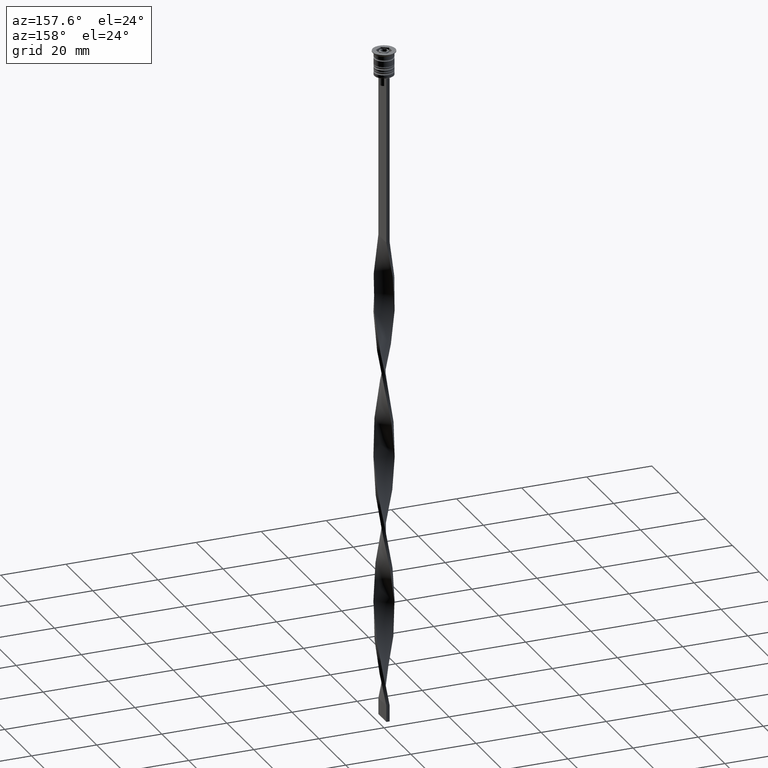
[diagram: clean part render]
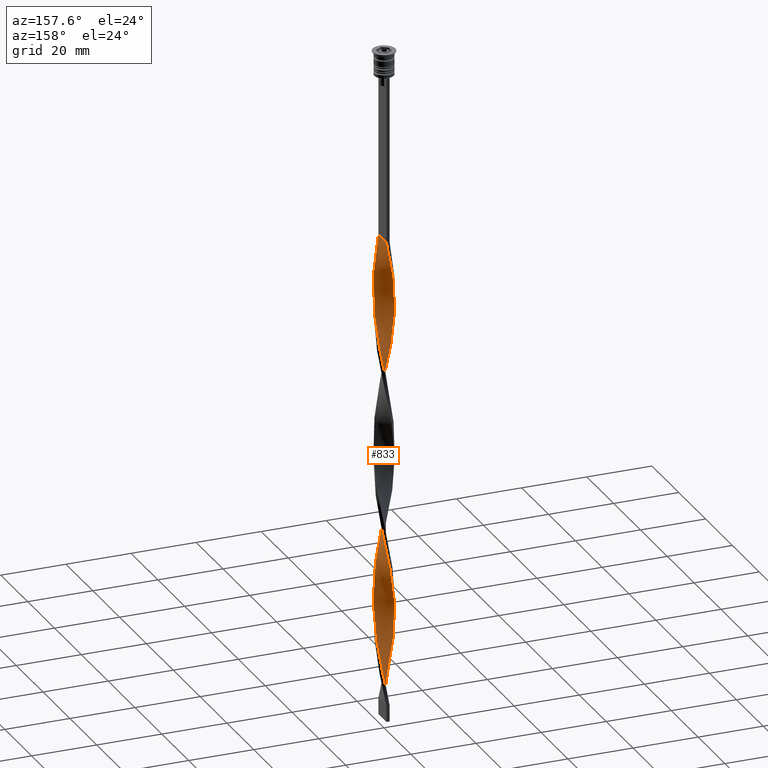
[diagram: same view with one face highlighted and labeled with its STEP entity id]
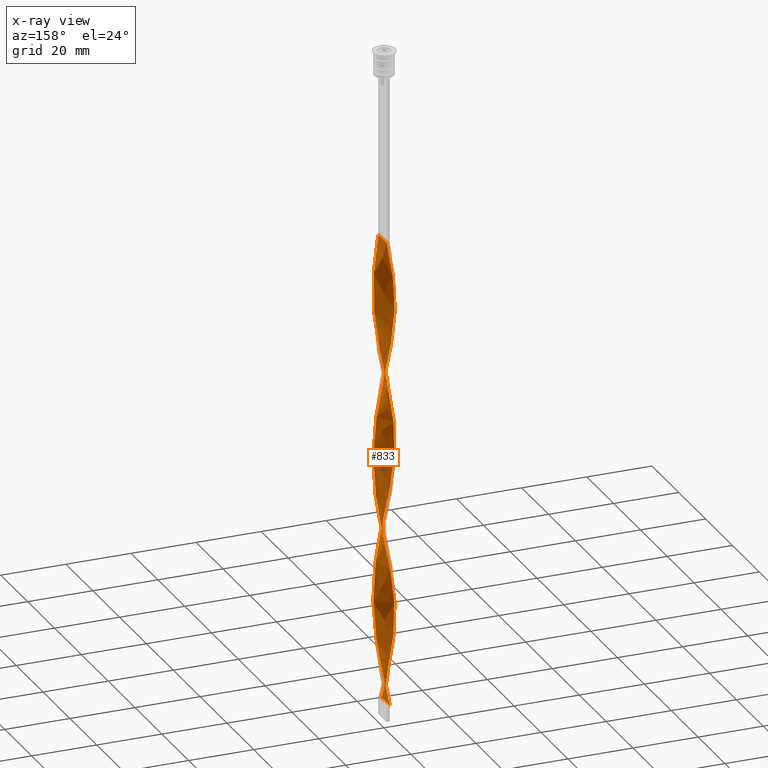
[diagram: x-ray of the same camera — body ghosted, the highlighted face saturated]
A machine part, auxiliary view. The second image highlights one B-rep face of the part: STEP entity #833.
The next image is the same camera in x-ray: the body ghosted, the highlighted face saturated — about 0% of this face is hidden behind the body in this view.
In plain terms, the highlighted face is a freeform B-spline surface patch.
Its self-contained STEP definition (entity closure, byte-faithful):
#2 = CARTESIAN_POINT ( 'NONE',  ( -1.651582472329342188, 2.553874573485256150, -69.79411764705881183 ) ) ;
#10 = CARTESIAN_POINT ( 'NONE',  ( -2.990795728622512417, -0.6201342673170633368, -88.14705882352940591 ) ) ;
#18 = CARTESIAN_POINT ( 'NONE',  ( 2.990795728622511973, -0.6201342673170637809, -172.8529411764705799 ) ) ;
#22 = CARTESIAN_POINT ( 'NONE',  ( -0.3415330684894309909, 3.035256292798965916, -62.73529411764705799 ) ) ;
#27 = CARTESIAN_POINT ( 'NONE',  ( -0.05976200360776023901, 3.040794057959990582, -157.3235294117646959 ) ) ;
#39 = CARTESIAN_POINT ( 'NONE',  ( -2.628006467404950364, 1.556601299988307430, -76.85294117647060830 ) ) ;
#45 = CARTESIAN_POINT ( 'NONE',  ( 2.825922375284400712, 1.159132575987103841, -138.9705882352941160 ) ) ;
#59 = CARTESIAN_POINT ( 'NONE',  ( -2.825922375284400712, -1.159132575987104508, -90.97058823529413019 ) ) ;
#64 = CARTESIAN_POINT ( 'NONE',  ( 2.869284401559883069, -1.047202283617008511, -127.6764705882352757 ) ) ;
#80 = CARTESIAN_POINT ( 'NONE',  ( -1.154187920767260289, 2.813867488627520785, -66.97058823529411598 ) ) ;
#86 = CARTESIAN_POINT ( 'NONE',  ( -2.004405056496874504, -2.287435325750164505, -98.02941176470588402 ) ) ;
#91 = CARTESIAN_POINT ( 'NONE',  ( -2.908359051953456564, 0.8896334216520830340, -123.4411764705882177 ) ) ;
#97 = CARTESIAN_POINT ( 'NONE',  ( 2.004405056496874504, -2.287435325750164505, -66.97058823529411598 ) ) ;
#107 = CARTESIAN_POINT ( 'NONE',  ( -0.2220090612739111235, 3.046331823121015692, -105.0882352941176521 ) ) ;
#116 = CARTESIAN_POINT ( 'NONE',  ( -2.908359051953456120, -0.8896334216520835891, -185.5588235294117396 ) ) ;
#121 = CARTESIAN_POINT ( 'NONE',  ( -2.004405056496874504, -2.287435325750164505, -194.0294117647058556 ) ) ;
#125 = CARTESIAN_POINT ( 'NONE',  ( 3.033336708616754862, 0.2210620097576110610, -81.08823529411763786 ) ) ;
#134 = CARTESIAN_POINT ( 'NONE',  ( -3.033336708616754418, 0.2210620097576115606, -179.9117647058823195 ) ) ;
#144 = CARTESIAN_POINT ( 'NONE',  ( -0.3415330684894319901, -3.035256292798965916, -150.2647058823528994 ) ) ;
#153 = CARTESIAN_POINT ( 'NONE',  ( -3.012852296747023484, 0.5021420494578373583, -178.4999999999999716 ) ) ;
#158 = CARTESIAN_POINT ( 'NONE',  ( -2.695369000030346740, -1.408895295497649247, -188.3823529411764355 ) ) ;
#162 = CARTESIAN_POINT ( 'NONE',  ( 2.695369000030346296, -1.408895295497649691, -72.61764705882352189 ) ) ;
#172 = CARTESIAN_POINT ( 'NONE',  ( -2.825922375284400712, -1.159132575987104508, -186.9705882352941444 ) ) ;
#191 = CARTESIAN_POINT ( 'NONE',  ( 2.941068349153452832, 0.7746721665374228794, -83.91176470588234793 ) ) ;
#209 = CARTESIAN_POINT ( 'NONE',  ( -2.092734363651091112, -2.206912522777888519, -140.3823529411764639 ) ) ;
#228 = CARTESIAN_POINT ( 'NONE',  ( 2.297234924948886814, 2.012992126025985762, -90.97058823529413019 ) ) ;
#237 = CARTESIAN_POINT ( 'NONE',  ( 2.869284401559882625, 1.047202283617009400, -181.3235294117646959 ) ) ;
#238 = CARTESIAN_POINT ( 'NONE',  ( 0.2220090612739105962, 3.046331823121015248, -59.91176470588236214 ) ) ;
#245 = CARTESIAN_POINT ( 'NONE',  ( 2.908359051953456564, -0.8896334216520838112, -75.44117647058823195 ) ) ;
#256 = CARTESIAN_POINT ( 'NONE',  ( 0.6174888838592811346, 2.978037521306644120, -196.8529411764705515 ) ) ;
#266 = CARTESIAN_POINT ( 'NONE',  ( 2.628006467404950364, 1.556601299988306986, -88.14705882352940591 ) ) ;
#274 = CARTESIAN_POINT ( 'NONE',  ( -2.092734363651090224, 2.206912522777888963, -72.61764705882352189 ) ) ;
#284 = DIRECTION ( 'NONE',  ( 0.000000000000000000, 1.000000000000000000, 0.000000000000000000 ) ) ;
#287 = CARTESIAN_POINT ( 'NONE',  ( 1.888233802353294966, -2.400832919529793497, -119.2058823529411455 ) ) ;
#293 = CARTESIAN_POINT ( 'NONE',  ( -1.888233802353294966, 2.400832919529793497, -71.20588235294118817 ) ) ;
#301 = CARTESIAN_POINT ( 'NONE',  ( 2.564815624776293213, -1.658658015008195319, -167.2058823529411882 ) ) ;
#304 = CARTESIAN_POINT ( 'NONE',  ( -0.6174888838592811346, 2.978037521306644120, -64.14705882352940591 ) ) ;
#310 = CARTESIAN_POINT ( 'NONE',  ( -2.390591389550001722, -1.880178929838698387, -95.20588235294117396 ) ) ;
#319 = CARTESIAN_POINT ( 'NONE',  ( 2.390591389550001278, -1.880178929838698831, -165.7941176470588118 ) ) ;
#328 = CARTESIAN_POINT ( 'NONE',  ( 0.4999999999999998890, 3.000000000000000000, -154.4999999999999716 ) ) ;
#338 = CARTESIAN_POINT ( 'NONE',  ( -2.908359051953456120, -0.8896334216520835891, -89.55882352941175384 ) ) ;
#344 = CARTESIAN_POINT ( 'NONE',  ( 2.628006467404950364, -1.556601299988307430, -124.8529411764705799 ) ) ;
#359 = CARTESIAN_POINT ( 'NONE',  ( 0.4999999999999998890, 3.000000000000000000, -58.50000000000000000 ) ) ;
#363 = CARTESIAN_POINT ( 'NONE',  ( -2.297234924948886370, 2.012992126025985318, -170.0294117647058840 ) ) ;
#367 = CARTESIAN_POINT ( 'NONE',  ( -1.549961113263637058, 2.616795855119490533, -112.1470588235294059 ) ) ;
#377 = CARTESIAN_POINT ( 'NONE',  ( 1.042735103291661858, -2.857044540143419908, -61.32352941176470296 ) ) ;
#382 = CARTESIAN_POINT ( 'NONE',  ( 1.307479267857235339, 2.760420903407855064, -150.2647058823528994 ) ) ;
#386 = CARTESIAN_POINT ( 'NONE',  ( 1.154187920767260289, 2.813867488627520785, -98.02941176470588402 ) ) ;
#393 = CARTESIAN_POINT ( 'NONE',  ( 2.004405056496875837, 2.287435325750163617, -146.0294117647058556 ) ) ;
#402 = CARTESIAN_POINT ( 'NONE',  ( -2.748645434482416050, -1.301901791802657860, -134.7352941176470722 ) ) ;
#410 = CARTESIAN_POINT ( 'NONE',  ( 1.549961113263636836, 2.616795855119490533, -148.8529411764705799 ) ) ;
#418 = CARTESIAN_POINT ( 'NONE',  ( -0.8934446992291305012, -2.920818749814322324, -147.4411764705882320 ) ) ;
#425 = EDGE_CURVE ( 'NONE', #2009, #3440, #3323, .T. ) ;
#430 = CARTESIAN_POINT ( 'NONE',  ( 3.012852296747023484, -0.5021420494578376914, -130.5000000000000000 ) ) ;
#439 = CARTESIAN_POINT ( 'NONE',  ( 2.825922375284400712, -1.159132575987103841, -74.02941176470586981 ) ) ;
#446 = CARTESIAN_POINT ( 'NONE',  ( -1.042735103291662080, -2.857044540143419908, -199.6764705882352757 ) ) ;
#453 = CARTESIAN_POINT ( 'NONE',  ( 3.033336708616754862, 0.2210620097576110610, -177.0882352941176237 ) ) ;
#464 = CARTESIAN_POINT ( 'NONE',  ( -2.908359051953456564, 0.8896334216520830340, -123.4411764705882177 ) ) ;
#477 = ORIENTED_EDGE ( 'NONE', *, *, #425, .F. ) ;
#482 = CARTESIAN_POINT ( 'NONE',  ( -2.941068349153452832, -0.7746721665374217691, -131.9117647058823479 ) ) ;
#483 = CARTESIAN_POINT ( 'NONE',  ( 0.4999999999999998890, -3.000000000000000000, -58.50000000000000000 ) ) ;
#491 = CARTESIAN_POINT ( 'NONE',  ( 2.748645434482416050, 1.301901791802658304, -182.7352941176470438 ) ) ;
#492 = CARTESIAN_POINT ( 'NONE',  ( -2.908359051953456120, -0.8896334216520835891, -89.55882352941175384 ) ) ;
#499 = CARTESIAN_POINT ( 'NONE',  ( -2.390591389550001278, 1.880178929838698831, -117.7941176470588118 ) ) ;
#507 = CARTESIAN_POINT ( 'NONE',  ( 2.941068349153452832, 0.7746721665374228794, -179.9117647058823195 ) ) ;
#519 = CARTESIAN_POINT ( 'NONE',  ( 1.042735103291661858, -2.857044540143419908, -157.3235294117646959 ) ) ;
#524 = CARTESIAN_POINT ( 'NONE',  ( -0.4999999999999995559, 3.000000000000000000, -202.4999999999999716 ) ) ;
#530 = CARTESIAN_POINT ( 'NONE',  ( -1.154187920767260289, 2.813867488627520785, -66.97058823529411598 ) ) ;
#539 = CARTESIAN_POINT ( 'NONE',  ( -2.004405056496874504, 2.287435325750164061, -114.9705882352941018 ) ) ;
#569 = CARTESIAN_POINT ( 'NONE',  ( -3.033336708616754418, 0.2210620097576115606, -83.91176470588234793 ) ) ;
#582 = CARTESIAN_POINT ( 'NONE',  ( -3.033336708616754418, 0.2210620097576115606, -83.91176470588234793 ) ) ;
#589 = CARTESIAN_POINT ( 'NONE',  ( -2.990795728622512417, -0.6201342673170633368, -184.1470588235293917 ) ) ;
#601 = CARTESIAN_POINT ( 'NONE',  ( 0.8934446992291308343, -2.920818749814322324, -113.5588235294117538 ) ) ;
#608 = CARTESIAN_POINT ( 'NONE',  ( 3.012852296747023484, -0.5021420494578376914, -130.5000000000000000 ) ) ;
#628 = CARTESIAN_POINT ( 'NONE',  ( 3.053821120486486240, 0.06001802994261524332, -133.3235294117646959 ) ) ;
#638 = CARTESIAN_POINT ( 'NONE',  ( 1.651582472329342632, 2.553874573485255706, -191.2058823529411598 ) ) ;
#640 = CARTESIAN_POINT ( 'NONE',  ( -2.748645434482416050, 1.301901791802657860, -78.26470588235292780 ) ) ;
#645 = CARTESIAN_POINT ( 'NONE',  ( 1.154187920767260511, -2.813867488627520341, -114.9705882352941018 ) ) ;
#650 = CARTESIAN_POINT ( 'NONE',  ( 0.4999999999999998890, -3.000000000000000000, -58.50000000000000000 ) ) ;
#658 = CARTESIAN_POINT ( 'NONE',  ( -0.7779909387260889320, -2.953668176878986973, -201.0882352941176237 ) ) ;
#663 = CARTESIAN_POINT ( 'NONE',  ( 2.564815624776292768, 1.658658015008195985, -141.7941176470587834 ) ) ;
#668 = CARTESIAN_POINT ( 'NONE',  ( 1.888233802353294966, 2.400832919529793497, -93.79411764705882604 ) ) ;
#677 = CARTESIAN_POINT ( 'NONE',  ( -3.022308424554498441, -0.3400761486298393144, -182.7352941176470438 ) ) ;
#685 = CARTESIAN_POINT ( 'NONE',  ( -1.792442958670038777, 2.473170806831127333, -113.5588235294117396 ) ) ;
#691 = CARTESIAN_POINT ( 'NONE',  ( -2.941068349153452388, 0.7746721665374231014, -177.0882352941176237 ) ) ;
#702 = CARTESIAN_POINT ( 'NONE',  ( -2.092734363651091112, -2.206912522777888519, -140.3823529411764639 ) ) ;
#710 = CARTESIAN_POINT ( 'NONE',  ( 2.390591389550001278, -1.880178929838698831, -69.79411764705881183 ) ) ;
#719 = CARTESIAN_POINT ( 'NONE',  ( -2.941068349153452832, -0.7746721665374217691, -131.9117647058823479 ) ) ;
#730 = CARTESIAN_POINT ( 'NONE',  ( 2.825922375284400712, -1.159132575987104063, -74.02941176470586981 ) ) ;
#734 = ORIENTED_EDGE ( 'NONE', *, *, #2317, .F. ) ;
#741 = CARTESIAN_POINT ( 'NONE',  ( 0.05976200360776034309, 3.040794057959990582, -103.6764705882352899 ) ) ;
#750 = CARTESIAN_POINT ( 'NONE',  ( -2.695369000030346296, 1.408895295497650135, -120.6176470588235219 ) ) ;
#758 = CARTESIAN_POINT ( 'NONE',  ( 2.216367154323709787, -2.101699844669203010, -164.3823529411764923 ) ) ;
#770 = CARTESIAN_POINT ( 'NONE',  ( -1.042735103291661192, 2.857044540143419908, -109.3235294117646959 ) ) ;
#771 = LINE ( 'NONE', #483, #1755 ) ;
#779 = CARTESIAN_POINT ( 'NONE',  ( -0.4999999999999995559, 3.000000000000000000, -202.4999999999999716 ) ) ;
#780 = CARTESIAN_POINT ( 'NONE',  ( -2.825922375284400712, -1.159132575987104508, -90.97058823529411598 ) ) ;
#790 = CARTESIAN_POINT ( 'NONE',  ( 0.2220090612739107072, -3.046331823121015692, -153.0882352941176237 ) ) ;
#808 = CARTESIAN_POINT ( 'NONE',  ( 2.748645434482416050, 1.301901791802658304, -86.73529411764704378 ) ) ;
#829 = CARTESIAN_POINT ( 'NONE',  ( -1.154187920767261843, -2.813867488627519897, -146.0294117647058556 ) ) ;
#833 = ADVANCED_FACE ( 'NONE', ( #1442 ), #870, .T. ) ;
#859 = CARTESIAN_POINT ( 'NONE',  ( -2.941068349153452388, 0.7746721665374231014, -81.08823529411763786 ) ) ;
#869 = CARTESIAN_POINT ( 'NONE',  ( 3.012852296747023484, 0.5021420494578369143, -178.4999999999999716 ) ) ;
#870 =( BOUNDED_SURFACE ( )  B_SPLINE_SURFACE ( 1, 2, ( 
 ( #359, #3174, #3496, #22, #304, #2629, #80, #2381, #2, #2929, #3516, #1175, #2022, #39, #640, #2323, #2079, #2345, #582, #1195, #2872, #2307, #338, #59, #910, #1757, #1212, #2059, #1739, #891, #1500, #2040, #2668, #2949, #1234, #930, #3457, #3194, #2649, #601, #947, #1519, #3533, #287, #2593, #2363, #1797, #2097, #3252, #1721, #1157, #430, #2998, #1829, #1605, #1040, #3620, #3285, #1000, #3034, #2116, #2437, #393, #2981, #410, #2757, #1324, #2686, #1865, #2453, #2704, #3550, #1567, #3320, #1550, #1019, #1287, #967, #1846, #1813, #1250, #3016, #2739, #2719, #691, #153, #134, #3269, #677, #1588, #116, #172, #1885, #2472, #3603, #2400, #1269, #3585, #2418, #2191, #446, #658, #2966 ),
 ( #3569, #3304, #377, #985, #1535, #2136, #97, #2151, #710, #1304, #2171, #730, #245, #2851, #1077, #3675, #3640, #3359, #191, #2224, #808, #266, #1944, #228, #1660, #3714, #1982, #1343, #2491, #1135, #1116, #3074, #3395, #1645, #2550, #3131, #770, #1059, #1418, #3376, #539, #3094, #499, #1398, #750, #2810, #464, #1679, #2206, #1380, #1925, #2794, #482, #2262, #1096, #3342, #2569, #2509, #209, #2245, #1361, #2531, #829, #1961, #1904, #3052, #3657, #790, #3697, #3110, #519, #2830, #3413, #1697, #1624, #2775, #319, #301, #1188, #3153, #1735, #18, #1753, #2077, #2887, #869, #1172, #3231, #1793, #2037, #2591, #2340, #2283, #1153, #638, #2304, #2946, #2665, #3734, #2907, #1476, #1717, #2926 ) ),
 .UNSPECIFIED., .F., .F., .F. ) 
 B_SPLINE_SURFACE_WITH_KNOTS ( ( 2, 2 ),
 ( 3, 2, 2, 2, 2, 2, 2, 2, 2, 2, 2, 2, 2, 2, 2, 2, 2, 2, 2, 2, 2, 2, 2, 2, 2, 2, 2, 2, 2, 2, 2, 2, 2, 2, 2, 2, 2, 2, 2, 2, 2, 2, 2, 2, 2, 2, 2, 2, 2, 2, 2, 3 ),
 ( 0.000000000000000000, 1.000000000000000000 ),
 ( 0.000000000000000000, 0.01470588235294117627, 0.02941176470588235253, 0.04411764705882353227, 0.05882352941176470507, 0.07352941176470588480, 0.08823529411764706454, 0.1029411764705882304, 0.1176470588235294101, 0.1323529411764705899, 0.1470588235294117696, 0.1617647058823529493, 0.1764705882352941291, 0.1911764705882352811, 0.2058823529411764608, 0.2205882352941176405, 0.2352941176470588203, 0.2500000000000000000, 0.2647058823529411797, 0.2794117647058823595, 0.2941176470588235392, 0.3088235294117647189, 0.3235294117647058987, 0.3382352941176470784, 0.3529411764705882582, 0.3676470588235294379, 0.3823529411764705621, 0.3970588235294117418, 0.4117647058823529216, 0.4264705882352941013, 0.4411764705882352811, 0.4558823529411764608, 0.4705882352941176405, 0.4852941176470588203, 0.5000000000000000000, 0.5147058823529411242, 0.5294117647058823595, 0.5441176470588234837, 0.5588235294117647189, 0.5735294117647058432, 0.5882352941176470784, 0.6029411764705882026, 0.6176470588235294379, 0.6323529411764705621, 0.6470588235294117974, 0.6617647058823529216, 0.6764705882352941568, 0.6911764705882352811, 0.7058823529411765163, 0.7205882352941176405, 0.7352941176470588758, 0.7500000000000000000 ),
 .UNSPECIFIED. ) 
 GEOMETRIC_REPRESENTATION_ITEM ( )  RATIONAL_B_SPLINE_SURFACE ( (
 ( 1.000000000000000000, 0.9957341762950344677, 1.000000000000000000, 0.9957341762950344677, 1.000000000000000000, 0.9957341762950344677, 1.000000000000000000, 0.9957341762950344677, 1.000000000000000000, 0.9957341762950344677, 1.000000000000000000, 0.9957341762950344677, 1.000000000000000000, 0.9957341762950344677, 1.000000000000000000, 0.9957341762950344677, 1.000000000000000000, 0.9957341762950344677, 1.000000000000000000, 0.9957341762950344677, 1.000000000000000000, 0.9957341762950344677, 1.000000000000000000, 0.9957341762950344677, 1.000000000000000000, 0.9957341762950344677, 1.000000000000000000, 0.9957341762950344677, 1.000000000000000000, 0.9957341762950344677, 1.000000000000000000, 0.9957341762950344677, 1.000000000000000000, 0.9957341762950344677, 1.000000000000000000, 0.9957341762950344677, 1.000000000000000000, 0.9957341762950344677, 1.000000000000000000, 0.9957341762950344677, 1.000000000000000000, 0.9957341762950344677, 1.000000000000000000, 0.9957341762950344677, 1.000000000000000000, 0.9957341762950344677, 1.000000000000000000, 0.9957341762950344677, 1.000000000000000000, 0.9957341762950344677, 1.000000000000000000, 0.9957341762950344677, 1.000000000000000000, 0.9957341762950344677, 1.000000000000000000, 0.9957341762950344677, 1.000000000000000000, 0.9957341762950344677, 1.000000000000000000, 0.9957341762950344677, 1.000000000000000000, 0.9957341762950344677, 1.000000000000000000, 0.9957341762950344677, 1.000000000000000000, 0.9957341762950344677, 1.000000000000000000, 0.9957341762950344677, 1.000000000000000000, 0.9957341762950344677, 1.000000000000000000, 0.9957341762950344677, 1.000000000000000000, 0.9957341762950344677, 1.000000000000000000, 0.9957341762950344677, 1.000000000000000000, 0.9957341762950344677, 1.000000000000000000, 0.9957341762950344677, 1.000000000000000000, 0.9957341762950344677, 1.000000000000000000, 0.9957341762950344677, 1.000000000000000000, 0.9957341762950344677, 1.000000000000000000, 0.9957341762950344677, 1.000000000000000000, 0.9957341762950344677, 1.000000000000000000, 0.9957341762950344677, 1.000000000000000000, 0.9957341762950344677, 1.000000000000000000, 0.9957341762950344677, 1.000000000000000000, 0.9957341762950344677, 1.000000000000000000, 0.9957341762950344677, 1.000000000000000000, 0.9957341762950344677, 1.000000000000000000),
 ( 1.000000000000000000, 0.9957341762950344677, 1.000000000000000000, 0.9957341762950344677, 1.000000000000000000, 0.9957341762950344677, 1.000000000000000000, 0.9957341762950344677, 1.000000000000000000, 0.9957341762950344677, 1.000000000000000000, 0.9957341762950344677, 1.000000000000000000, 0.9957341762950344677, 1.000000000000000000, 0.9957341762950344677, 1.000000000000000000, 0.9957341762950344677, 1.000000000000000000, 0.9957341762950344677, 1.000000000000000000, 0.9957341762950344677, 1.000000000000000000, 0.9957341762950344677, 1.000000000000000000, 0.9957341762950344677, 1.000000000000000000, 0.9957341762950344677, 1.000000000000000000, 0.9957341762950344677, 1.000000000000000000, 0.9957341762950344677, 1.000000000000000000, 0.9957341762950344677, 1.000000000000000000, 0.9957341762950344677, 1.000000000000000000, 0.9957341762950344677, 1.000000000000000000, 0.9957341762950344677, 1.000000000000000000, 0.9957341762950344677, 1.000000000000000000, 0.9957341762950344677, 1.000000000000000000, 0.9957341762950344677, 1.000000000000000000, 0.9957341762950344677, 1.000000000000000000, 0.9957341762950344677, 1.000000000000000000, 0.9957341762950344677, 1.000000000000000000, 0.9957341762950344677, 1.000000000000000000, 0.9957341762950344677, 1.000000000000000000, 0.9957341762950344677, 1.000000000000000000, 0.9957341762950344677, 1.000000000000000000, 0.9957341762950344677, 1.000000000000000000, 0.9957341762950344677, 1.000000000000000000, 0.9957341762950344677, 1.000000000000000000, 0.9957341762950344677, 1.000000000000000000, 0.9957341762950344677, 1.000000000000000000, 0.9957341762950344677, 1.000000000000000000, 0.9957341762950344677, 1.000000000000000000, 0.9957341762950344677, 1.000000000000000000, 0.9957341762950344677, 1.000000000000000000, 0.9957341762950344677, 1.000000000000000000, 0.9957341762950344677, 1.000000000000000000, 0.9957341762950344677, 1.000000000000000000, 0.9957341762950344677, 1.000000000000000000, 0.9957341762950344677, 1.000000000000000000, 0.9957341762950344677, 1.000000000000000000, 0.9957341762950344677, 1.000000000000000000, 0.9957341762950344677, 1.000000000000000000, 0.9957341762950344677, 1.000000000000000000, 0.9957341762950344677, 1.000000000000000000, 0.9957341762950344677, 1.000000000000000000, 0.9957341762950344677, 1.000000000000000000) ) ) 
 REPRESENTATION_ITEM ( '' )  SURFACE ( )  );
#878 = CARTESIAN_POINT ( 'NONE',  ( -3.022308424554498441, -0.3400761486298393144, -182.7352941176470438 ) ) ;
#891 = CARTESIAN_POINT ( 'NONE',  ( -1.792442958670039221, -2.473170806831126445, -99.44117647058823195 ) ) ;
#898 = CARTESIAN_POINT ( 'NONE',  ( 2.908359051953456120, 0.8896334216520844773, -137.5588235294117680 ) ) ;
#910 = CARTESIAN_POINT ( 'NONE',  ( -2.695369000030346740, -1.408895295497649247, -92.38235294117646390 ) ) ;
#918 = CARTESIAN_POINT ( 'NONE',  ( 2.390591389550000834, 1.880178929838699053, -143.2058823529411882 ) ) ;
#930 = CARTESIAN_POINT ( 'NONE',  ( -0.2220090612739103741, -3.046331823121014803, -107.9117647058823621 ) ) ;
#936 = CARTESIAN_POINT ( 'NONE',  ( 1.651582472329342188, -2.553874573485256150, -117.7941176470588118 ) ) ;
#947 = CARTESIAN_POINT ( 'NONE',  ( 1.154187920767260511, -2.813867488627520341, -114.9705882352941018 ) ) ;
#953 = CARTESIAN_POINT ( 'NONE',  ( 3.022308424554498441, 0.3400761486298388703, -134.7352941176470722 ) ) ;
#960 = CARTESIAN_POINT ( 'NONE',  ( -2.825922375284401156, 1.159132575987104730, -122.0294117647058840 ) ) ;
#967 = CARTESIAN_POINT ( 'NONE',  ( -1.888233802353294966, 2.400832919529793497, -167.2058823529411882 ) ) ;
#977 = CARTESIAN_POINT ( 'NONE',  ( -2.297234924948886370, -2.012992126025985318, -138.9705882352941160 ) ) ;
#985 = CARTESIAN_POINT ( 'NONE',  ( 1.307479267857234673, -2.760420903407855509, -62.73529411764705799 ) ) ;
#989 = CARTESIAN_POINT ( 'NONE',  ( -0.7779909387260889320, -2.953668176878986529, -201.0882352941176237 ) ) ;
#993 = CARTESIAN_POINT ( 'NONE',  ( -2.990795728622512417, 0.6201342673170635589, -124.8529411764705799 ) ) ;
#1000 = CARTESIAN_POINT ( 'NONE',  ( 2.695369000030347184, 1.408895295497648803, -140.3823529411764639 ) ) ;
#1005 = CARTESIAN_POINT ( 'NONE',  ( -0.5000000000000002220, -3.000000000000000000, -202.4999999999999716 ) ) ;
#1010 = CARTESIAN_POINT ( 'NONE',  ( 2.990795728622512417, -0.6201342673170637809, -76.85294117647059409 ) ) ;
#1019 = CARTESIAN_POINT ( 'NONE',  ( -1.414931142305390521, 2.706916227440719247, -164.3823529411764923 ) ) ;
#1029 = CARTESIAN_POINT ( 'NONE',  ( 2.297234924948886370, 2.012992126025985762, -90.97058823529411598 ) ) ;
#1040 = CARTESIAN_POINT ( 'NONE',  ( 2.990795728622511529, 0.6201342673170625597, -136.1470588235294201 ) ) ;
#1044 = CARTESIAN_POINT ( 'NONE',  ( -1.042735103291662080, -2.857044540143419908, -199.6764705882352757 ) ) ;
#1050 = CARTESIAN_POINT ( 'NONE',  ( 2.092734363651090668, 2.206912522777888963, -188.3823529411764355 ) ) ;
#1059 = CARTESIAN_POINT ( 'NONE',  ( -1.307479267857234673, 2.760420903407855509, -110.7352941176470438 ) ) ;
#1077 = CARTESIAN_POINT ( 'NONE',  ( 3.022308424554498441, -0.3400761486298388703, -78.26470588235292780 ) ) ;
#1085 = CARTESIAN_POINT ( 'NONE',  ( 2.908359051953456564, -0.8896334216520838112, -171.4411764705882035 ) ) ;
#1096 = CARTESIAN_POINT ( 'NONE',  ( -2.748645434482416050, -1.301901791802657860, -134.7352941176470722 ) ) ;
#1106 = CARTESIAN_POINT ( 'NONE',  ( 0.4999999999999998890, -3.000000000000000000, -154.4999999999999716 ) ) ;
#1110 = CARTESIAN_POINT ( 'NONE',  ( 0.4999999999999998890, 3.000000000000000000, -58.50000000000000000 ) ) ;
#1116 = CARTESIAN_POINT ( 'NONE',  ( 0.6174888838592811346, 2.978037521306644120, -100.8529411764705941 ) ) ;
#1125 = CARTESIAN_POINT ( 'NONE',  ( -0.8934446992291310563, 2.920818749814322324, -65.55882352941178226 ) ) ;
#1135 = CARTESIAN_POINT ( 'NONE',  ( 0.8934446992291316114, 2.920818749814321880, -99.44117647058823195 ) ) ;
#1144 = CARTESIAN_POINT ( 'NONE',  ( -2.748645434482416050, 1.301901791802657860, -78.26470588235292780 ) ) ;
#1148 = CARTESIAN_POINT ( 'NONE',  ( 1.042735103291661858, -2.857044540143419908, -61.32352941176470296 ) ) ;
#1153 = CARTESIAN_POINT ( 'NONE',  ( 1.888233802353294966, 2.400832919529793497, -189.7941176470587834 ) ) ;
#1157 = CARTESIAN_POINT ( 'NONE',  ( 2.941068349153452832, -0.7746721665374229904, -129.0882352941176521 ) ) ;
#1163 = CARTESIAN_POINT ( 'NONE',  ( -3.033336708616754418, 0.2210620097576115606, -179.9117647058823195 ) ) ;
#1172 = CARTESIAN_POINT ( 'NONE',  ( 2.941068349153452832, 0.7746721665374228794, -179.9117647058823195 ) ) ;
#1175 = CARTESIAN_POINT ( 'NONE',  ( -2.297234924948886814, 2.012992126025985318, -74.02941176470586981 ) ) ;
#1179 = CARTESIAN_POINT ( 'NONE',  ( -1.651582472329342188, 2.553874573485256150, -165.7941176470588118 ) ) ;
#1188 = CARTESIAN_POINT ( 'NONE',  ( 2.695369000030346296, -1.408895295497649691, -168.6176470588235077 ) ) ;
#1195 = CARTESIAN_POINT ( 'NONE',  ( -3.053821120486486240, -0.06001802994261491719, -85.32352941176469585 ) ) ;
#1199 = VERTEX_POINT ( 'NONE', #1650 ) ;
#1201 = CARTESIAN_POINT ( 'NONE',  ( 0.8934446992291308343, -2.920818749814322324, -113.5588235294117396 ) ) ;
#1212 = CARTESIAN_POINT ( 'NONE',  ( -2.390591389550001722, -1.880178929838698387, -95.20588235294117396 ) ) ;
#1220 = CARTESIAN_POINT ( 'NONE',  ( -0.8934446992291310563, 2.920818749814322324, -161.5588235294117680 ) ) ;
#1234 = CARTESIAN_POINT ( 'NONE',  ( -0.5000000000000002220, -3.000000000000000000, -106.4999999999999858 ) ) ;
#1238 = CARTESIAN_POINT ( 'NONE',  ( 2.092734363651090224, -2.206912522777889407, -120.6176470588235219 ) ) ;
#1243 = CARTESIAN_POINT ( 'NONE',  ( -1.651582472329341744, -2.553874573485256150, -143.2058823529411882 ) ) ;
#1250 = CARTESIAN_POINT ( 'NONE',  ( -2.462620696176917701, 1.784796713007145819, -171.4411764705882035 ) ) ;
#1262 = CARTESIAN_POINT ( 'NONE',  ( -2.564815624776293213, 1.658658015008194875, -119.2058823529411598 ) ) ;
#1269 = CARTESIAN_POINT ( 'NONE',  ( -2.004405056496874504, -2.287435325750164505, -194.0294117647058556 ) ) ;
#1274 = CARTESIAN_POINT ( 'NONE',  ( -0.5000000000000002220, -3.000000000000000000, -202.4999999999999716 ) ) ;
#1279 = CARTESIAN_POINT ( 'NONE',  ( 2.092734363651090668, 2.206912522777888963, -92.38235294117646390 ) ) ;
#1287 = CARTESIAN_POINT ( 'NONE',  ( -1.651582472329342188, 2.553874573485256150, -165.7941176470588118 ) ) ;
#1295 = CARTESIAN_POINT ( 'NONE',  ( -0.05976200360775937165, -3.040794057959990582, -151.6764705882353041 ) ) ;
#1304 = CARTESIAN_POINT ( 'NONE',  ( 2.564815624776293213, -1.658658015008195319, -71.20588235294118817 ) ) ;
#1314 = CARTESIAN_POINT ( 'NONE',  ( 2.908359051953456564, -0.8896334216520838112, -75.44117647058823195 ) ) ;
#1324 = CARTESIAN_POINT ( 'NONE',  ( 1.042735103291660970, 2.857044540143419908, -151.6764705882353041 ) ) ;
#1343 = CARTESIAN_POINT ( 'NONE',  ( 1.414931142305390521, 2.706916227440719247, -96.61764705882353610 ) ) ;
#1353 = CARTESIAN_POINT ( 'NONE',  ( -0.2220090612739111235, 3.046331823121015692, -201.0882352941176237 ) ) ;
#1361 = CARTESIAN_POINT ( 'NONE',  ( -1.651582472329341744, -2.553874573485256150, -143.2058823529411882 ) ) ;
#1374 = EDGE_CURVE ( 'NONE', #1199, #2009, #771, .T. ) ;
#1380 = CARTESIAN_POINT ( 'NONE',  ( -3.053821120486486684, 0.06001802994261361962, -127.6764705882352615 ) ) ;
#1387 = CARTESIAN_POINT ( 'NONE',  ( 2.462620696176918145, 1.784796713007145597, -185.5588235294117396 ) ) ;
#1398 = CARTESIAN_POINT ( 'NONE',  ( -2.564815624776293213, 1.658658015008194875, -119.2058823529411455 ) ) ;
#1418 = CARTESIAN_POINT ( 'NONE',  ( -1.549961113263637058, 2.616795855119490533, -112.1470588235294059 ) ) ;
#1428 = CARTESIAN_POINT ( 'NONE',  ( -2.628006467404950364, 1.556601299988307430, -76.85294117647059409 ) ) ;
#1442 = FACE_OUTER_BOUND ( 'NONE', #2143, .T. ) ;
#1447 = CARTESIAN_POINT ( 'NONE',  ( -3.053821120486486240, -0.06001802994261491719, -85.32352941176469585 ) ) ;
#1466 = CARTESIAN_POINT ( 'NONE',  ( -1.042735103291662080, -2.857044540143419908, -103.6764705882352899 ) ) ;
#1476 = CARTESIAN_POINT ( 'NONE',  ( 0.05976200360776034309, 3.040794057959990582, -199.6764705882352757 ) ) ;
#1484 = CARTESIAN_POINT ( 'NONE',  ( 0.2220090612739105962, 3.046331823121015248, -155.9117647058823763 ) ) ;
#1500 = CARTESIAN_POINT ( 'NONE',  ( -1.549961113263636614, -2.616795855119490533, -100.8529411764705941 ) ) ;
#1506 = CARTESIAN_POINT ( 'NONE',  ( 1.042735103291660970, 2.857044540143419908, -151.6764705882353041 ) ) ;
#1519 = CARTESIAN_POINT ( 'NONE',  ( 1.414931142305389633, -2.706916227440719691, -116.3823529411764781 ) ) ;
#1525 = CARTESIAN_POINT ( 'NONE',  ( -1.549961113263636614, -2.616795855119490533, -100.8529411764705941 ) ) ;
#1530 = CARTESIAN_POINT ( 'NONE',  ( -2.216367154323709343, 2.101699844669203454, -116.3823529411764781 ) ) ;
#1535 = CARTESIAN_POINT ( 'NONE',  ( 1.549961113263636614, -2.616795855119490533, -64.14705882352940591 ) ) ;
#1540 = CARTESIAN_POINT ( 'NONE',  ( -2.941068349153452388, 0.7746721665374231014, -177.0882352941176237 ) ) ;
#1544 = CARTESIAN_POINT ( 'NONE',  ( 3.053821120486486240, -0.06001802994261470209, -79.67647058823528994 ) ) ;
#1550 = CARTESIAN_POINT ( 'NONE',  ( -1.154187920767260289, 2.813867488627520785, -162.9705882352940876 ) ) ;
#1554 = CARTESIAN_POINT ( 'NONE',  ( -1.792442958670039443, -2.473170806831126889, -195.4411764705882604 ) ) ;
#1560 = CARTESIAN_POINT ( 'NONE',  ( -2.462620696176917257, -1.784796713007146485, -137.5588235294117680 ) ) ;
#1567 = CARTESIAN_POINT ( 'NONE',  ( -0.6174888838592811346, 2.978037521306644120, -160.1470588235293917 ) ) ;
#1579 = CARTESIAN_POINT ( 'NONE',  ( -0.6174888838592813567, -2.978037521306644120, -148.8529411764705799 ) ) ;
#1588 = CARTESIAN_POINT ( 'NONE',  ( -2.990795728622511973, -0.6201342673170633368, -184.1470588235293917 ) ) ;
#1596 = CARTESIAN_POINT ( 'NONE',  ( 2.869284401559882625, 1.047202283617009400, -85.32352941176469585 ) ) ;
#1605 = CARTESIAN_POINT ( 'NONE',  ( 3.022308424554498441, 0.3400761486298388703, -134.7352941176470722 ) ) ;
#1610 = CARTESIAN_POINT ( 'NONE',  ( -2.908359051953456120, -0.8896334216520835891, -185.5588235294117396 ) ) ;
#1624 = CARTESIAN_POINT ( 'NONE',  ( 2.004405056496874504, -2.287435325750164505, -162.9705882352940876 ) ) ;
#1645 = CARTESIAN_POINT ( 'NONE',  ( -0.2220090612739111235, 3.046331823121015248, -105.0882352941176521 ) ) ;
#1650 = CARTESIAN_POINT ( 'NONE',  ( 0.4999999999999998890, -3.000000000000000000, -58.50000000000000000 ) ) ;
#1652 = CARTESIAN_POINT ( 'NONE',  ( 2.297234924948886370, 2.012992126025985762, -186.9705882352941444 ) ) ;
#1653 = CARTESIAN_POINT ( 'NONE',  ( -2.564815624776293213, -1.658658015008195319, -93.79411764705882604 ) ) ;
#1660 = CARTESIAN_POINT ( 'NONE',  ( 2.092734363651090668, 2.206912522777888963, -92.38235294117646390 ) ) ;
#1668 = CARTESIAN_POINT ( 'NONE',  ( 2.390591389550001278, -1.880178929838698831, -165.7941176470588118 ) ) ;
#1679 = CARTESIAN_POINT ( 'NONE',  ( -2.990795728622511973, 0.6201342673170635589, -124.8529411764705799 ) ) ;
#1686 = CARTESIAN_POINT ( 'NONE',  ( 2.004405056496874504, -2.287435325750164505, -162.9705882352940876 ) ) ;
#1697 = CARTESIAN_POINT ( 'NONE',  ( 1.792442958670038999, -2.473170806831126889, -161.5588235294117396 ) ) ;
#1717 = CARTESIAN_POINT ( 'NONE',  ( -0.2220090612739111235, 3.046331823121015248, -201.0882352941176237 ) ) ;
#1721 = CARTESIAN_POINT ( 'NONE',  ( 2.869284401559883069, -1.047202283617008511, -127.6764705882352615 ) ) ;
#1735 = CARTESIAN_POINT ( 'NONE',  ( 2.908359051953456564, -0.8896334216520838112, -171.4411764705882035 ) ) ;
#1739 = CARTESIAN_POINT ( 'NONE',  ( -2.004405056496874504, -2.287435325750164505, -98.02941176470588402 ) ) ;
#1744 = CARTESIAN_POINT ( 'NONE',  ( -0.2220090612739103741, -3.046331823121015248, -107.9117647058823621 ) ) ;
#1753 = CARTESIAN_POINT ( 'NONE',  ( 3.022308424554498441, -0.3400761486298388703, -174.2647058823529278 ) ) ;
#1755 = VECTOR ( 'NONE', #284, 1000.000000000000000 ) ;
#1757 = CARTESIAN_POINT ( 'NONE',  ( -2.564815624776293213, -1.658658015008195319, -93.79411764705881183 ) ) ;
#1765 = CARTESIAN_POINT ( 'NONE',  ( 2.990795728622511973, 0.6201342673170626707, -136.1470588235294201 ) ) ;
#1783 = CARTESIAN_POINT ( 'NONE',  ( -1.307479267857235117, -2.760420903407855509, -102.2647058823529420 ) ) ;
#1793 = CARTESIAN_POINT ( 'NONE',  ( 2.748645434482416050, 1.301901791802658304, -182.7352941176470438 ) ) ;
#1797 = CARTESIAN_POINT ( 'NONE',  ( 2.462620696176918589, -1.784796713007145375, -123.4411764705882177 ) ) ;
#1802 = CARTESIAN_POINT ( 'NONE',  ( -1.154187920767260289, 2.813867488627520785, -162.9705882352940876 ) ) ;
#1806 = CARTESIAN_POINT ( 'NONE',  ( 0.7779909387260891540, -2.953668176878985641, -59.91176470588236214 ) ) ;
#1813 = CARTESIAN_POINT ( 'NONE',  ( -2.297234924948886814, 2.012992126025985318, -170.0294117647058556 ) ) ;
#1819 = CARTESIAN_POINT ( 'NONE',  ( -2.092734363651090224, 2.206912522777888963, -168.6176470588235077 ) ) ;
#1823 = CARTESIAN_POINT ( 'NONE',  ( 2.216367154323709787, -2.101699844669203010, -68.38235294117646390 ) ) ;
#1829 = CARTESIAN_POINT ( 'NONE',  ( 3.053821120486486240, 0.06001802994261524332, -133.3235294117647243 ) ) ;
#1838 = CARTESIAN_POINT ( 'NONE',  ( 2.628006467404950364, 1.556601299988306986, -88.14705882352940591 ) ) ;
#1846 = CARTESIAN_POINT ( 'NONE',  ( -2.092734363651090224, 2.206912522777888963, -168.6176470588235077 ) ) ;
#1858 = CARTESIAN_POINT ( 'NONE',  ( 1.651582472329342632, 2.553874573485255706, -95.20588235294117396 ) ) ;
#1865 = CARTESIAN_POINT ( 'NONE',  ( 0.4999999999999998890, 3.000000000000000000, -154.4999999999999716 ) ) ;
#1876 = CARTESIAN_POINT ( 'NONE',  ( -2.869284401559882625, -1.047202283617009844, -133.3235294117646959 ) ) ;
#1885 = CARTESIAN_POINT ( 'NONE',  ( -2.695369000030346740, -1.408895295497649247, -188.3823529411764355 ) ) ;
#1895 = CARTESIAN_POINT ( 'NONE',  ( -0.4999999999999995559, 3.000000000000000000, -202.4999999999999716 ) ) ;
#1904 = CARTESIAN_POINT ( 'NONE',  ( -0.6174888838592813567, -2.978037521306644120, -148.8529411764705799 ) ) ;
#1909 = CARTESIAN_POINT ( 'NONE',  ( -1.549961113263636614, -2.616795855119490533, -196.8529411764705515 ) ) ;
#1915 = CARTESIAN_POINT ( 'NONE',  ( 1.888233802353294966, 2.400832919529793497, -189.7941176470588118 ) ) ;
#1925 = CARTESIAN_POINT ( 'NONE',  ( -3.033336708616754418, -0.2210620097576114496, -129.0882352941176521 ) ) ;
#1933 = CARTESIAN_POINT ( 'NONE',  ( 2.628006467404950364, 1.556601299988306986, -184.1470588235293917 ) ) ;
#1934 = CARTESIAN_POINT ( 'NONE',  ( -2.695369000030346740, -1.408895295497649247, -92.38235294117646390 ) ) ;
#1944 = CARTESIAN_POINT ( 'NONE',  ( 2.462620696176918145, 1.784796713007145597, -89.55882352941175384 ) ) ;
#1953 = CARTESIAN_POINT ( 'NONE',  ( -0.5000000000000002220, -3.000000000000000000, -202.4999999999999716 ) ) ;
#1961 = CARTESIAN_POINT ( 'NONE',  ( -0.8934446992291305012, -2.920818749814322324, -147.4411764705882320 ) ) ;
#1969 = CARTESIAN_POINT ( 'NONE',  ( -0.4999999999999997780, 1.000000000000000000, -202.4999999999999716 ) ) ;
#1982 = CARTESIAN_POINT ( 'NONE',  ( 1.651582472329342632, 2.553874573485255706, -95.20588235294117396 ) ) ;
#2009 = VERTEX_POINT ( 'NONE', #1110 ) ;
#2022 = CARTESIAN_POINT ( 'NONE',  ( -2.462620696176917701, 1.784796713007145819, -75.44117647058823195 ) ) ;
#2027 = CARTESIAN_POINT ( 'NONE',  ( 2.941068349153452832, -0.7746721665374229904, -129.0882352941176521 ) ) ;
#2037 = CARTESIAN_POINT ( 'NONE',  ( 2.628006467404950364, 1.556601299988306986, -184.1470588235293917 ) ) ;
#2040 = CARTESIAN_POINT ( 'NONE',  ( -1.307479267857235339, -2.760420903407855509, -102.2647058823529420 ) ) ;
#2045 = CARTESIAN_POINT ( 'NONE',  ( 1.414931142305389411, -2.706916227440719691, -116.3823529411764781 ) ) ;
#2059 = CARTESIAN_POINT ( 'NONE',  ( -2.216367154323710231, -2.101699844669203010, -96.61764705882353610 ) ) ;
#2066 = CARTESIAN_POINT ( 'NONE',  ( -2.216367154323709787, -2.101699844669203010, -96.61764705882355031 ) ) ;
#2077 = CARTESIAN_POINT ( 'NONE',  ( 3.053821120486486240, -0.06001802994261470209, -175.6764705882353041 ) ) ;
#2079 = CARTESIAN_POINT ( 'NONE',  ( -2.941068349153452388, 0.7746721665374231014, -81.08823529411763786 ) ) ;
#2085 = CARTESIAN_POINT ( 'NONE',  ( 1.549961113263636836, 2.616795855119490533, -148.8529411764705799 ) ) ;
#2097 = CARTESIAN_POINT ( 'NONE',  ( 2.628006467404950364, -1.556601299988307430, -124.8529411764705799 ) ) ;
#2102 = CARTESIAN_POINT ( 'NONE',  ( 2.695369000030347184, 1.408895295497648803, -140.3823529411764639 ) ) ;
#2107 = CARTESIAN_POINT ( 'NONE',  ( 2.004405056496874504, -2.287435325750164505, -66.97058823529411598 ) ) ;
#2116 = CARTESIAN_POINT ( 'NONE',  ( 2.390591389550000834, 1.880178929838699053, -143.2058823529411882 ) ) ;
#2128 = CARTESIAN_POINT ( 'NONE',  ( -1.888233802353293855, -2.400832919529793941, -141.7941176470587834 ) ) ;
#2136 = CARTESIAN_POINT ( 'NONE',  ( 1.792442958670038999, -2.473170806831126889, -65.55882352941179647 ) ) ;
#2140 = CARTESIAN_POINT ( 'NONE',  ( -2.564815624776293213, -1.658658015008195319, -189.7941176470588118 ) ) ;
#2143 = EDGE_LOOP ( 'NONE', ( #3288, #2603, #734, #477 ) ) ;
#2144 = CARTESIAN_POINT ( 'NONE',  ( -0.7779909387260893761, 2.953668176878985641, -107.9117647058823621 ) ) ;
#2151 = CARTESIAN_POINT ( 'NONE',  ( 2.216367154323710231, -2.101699844669203010, -68.38235294117646390 ) ) ;
#2163 = CARTESIAN_POINT ( 'NONE',  ( -3.033336708616754418, -0.2210620097576114496, -129.0882352941176521 ) ) ;
#2171 = CARTESIAN_POINT ( 'NONE',  ( 2.695369000030346296, -1.408895295497649691, -72.61764705882352189 ) ) ;
#2182 = CARTESIAN_POINT ( 'NONE',  ( 2.941068349153452832, 0.7746721665374228794, -83.91176470588234793 ) ) ;
#2191 = CARTESIAN_POINT ( 'NONE',  ( -1.307479267857235339, -2.760420903407855509, -198.2647058823529562 ) ) ;
#2198 = CARTESIAN_POINT ( 'NONE',  ( 1.307479267857234451, -2.760420903407855509, -158.7352941176470438 ) ) ;
#2206 = CARTESIAN_POINT ( 'NONE',  ( -3.022308424554498885, 0.3400761486298399805, -126.2647058823529420 ) ) ;
#2216 = CARTESIAN_POINT ( 'NONE',  ( -2.297234924948886370, 2.012992126025985318, -74.02941176470586981 ) ) ;
#2224 = CARTESIAN_POINT ( 'NONE',  ( 2.869284401559882625, 1.047202283617009400, -85.32352941176469585 ) ) ;
#2245 = CARTESIAN_POINT ( 'NONE',  ( -1.888233802353293855, -2.400832919529793941, -141.7941176470588118 ) ) ;
#2254 = CARTESIAN_POINT ( 'NONE',  ( -2.462620696176917701, 1.784796713007145819, -75.44117647058823195 ) ) ;
#2262 = CARTESIAN_POINT ( 'NONE',  ( -2.869284401559882625, -1.047202283617009844, -133.3235294117647243 ) ) ;
#2268 = EDGE_CURVE ( 'NONE', #1199, #3672, #2701, .T. ) ;
#2283 = CARTESIAN_POINT ( 'NONE',  ( 2.092734363651090668, 2.206912522777888963, -188.3823529411764355 ) ) ;
#2293 = CARTESIAN_POINT ( 'NONE',  ( -2.869284401559882625, 1.047202283617009400, -79.67647058823528994 ) ) ;
#2296 = CARTESIAN_POINT ( 'NONE',  ( 1.307479267857234451, -2.760420903407855509, -62.73529411764705799 ) ) ;
#2304 = CARTESIAN_POINT ( 'NONE',  ( 1.414931142305390521, 2.706916227440719247, -192.6176470588235077 ) ) ;
#2307 = CARTESIAN_POINT ( 'NONE',  ( -2.990795728622511973, -0.6201342673170633368, -88.14705882352940591 ) ) ;
#2311 = CARTESIAN_POINT ( 'NONE',  ( -0.5000000000000002220, -3.000000000000000000, -106.4999999999999858 ) ) ;
#2317 = EDGE_CURVE ( 'NONE', #3440, #3672, #2527, .T. ) ;
#2323 = CARTESIAN_POINT ( 'NONE',  ( -2.869284401559882625, 1.047202283617009400, -79.67647058823528994 ) ) ;
#2328 = CARTESIAN_POINT ( 'NONE',  ( 2.004405056496875837, 2.287435325750163617, -146.0294117647058556 ) ) ;
#2340 = CARTESIAN_POINT ( 'NONE',  ( 2.297234924948886814, 2.012992126025985762, -186.9705882352941444 ) ) ;
#2345 = CARTESIAN_POINT ( 'NONE',  ( -3.012852296747023484, 0.5021420494578373583, -82.49999999999998579 ) ) ;
#2350 = CARTESIAN_POINT ( 'NONE',  ( -0.7779909387260889320, -2.953668176878986529, -105.0882352941176521 ) ) ;
#2363 = CARTESIAN_POINT ( 'NONE',  ( 2.297234924948886370, -2.012992126025985762, -122.0294117647058982 ) ) ;
#2370 = CARTESIAN_POINT ( 'NONE',  ( 0.05976200360775958675, -3.040794057959990582, -109.3235294117646959 ) ) ;
#2381 = CARTESIAN_POINT ( 'NONE',  ( -1.414931142305390521, 2.706916227440719247, -68.38235294117646390 ) ) ;
#2386 = CARTESIAN_POINT ( 'NONE',  ( -2.748645434482416050, 1.301901791802657860, -174.2647058823529278 ) ) ;
#2391 = CARTESIAN_POINT ( 'NONE',  ( -1.042735103291661192, 2.857044540143419908, -109.3235294117646959 ) ) ;
#2400 = CARTESIAN_POINT ( 'NONE',  ( -2.216367154323710231, -2.101699844669203010, -192.6176470588235077 ) ) ;
#2410 = CARTESIAN_POINT ( 'NONE',  ( -3.022308424554498885, 0.3400761486298399805, -126.2647058823529420 ) ) ;
#2418 = CARTESIAN_POINT ( 'NONE',  ( -1.549961113263636614, -2.616795855119490533, -196.8529411764705515 ) ) ;
#2430 = CARTESIAN_POINT ( 'NONE',  ( -0.4999999999999995559, 3.000000000000000000, -106.4999999999999858 ) ) ;
#2437 = CARTESIAN_POINT ( 'NONE',  ( 2.216367154323710675, 2.101699844669203010, -144.6176470588235361 ) ) ;
#2445 = CARTESIAN_POINT ( 'NONE',  ( 1.549961113263636614, -2.616795855119490533, -64.14705882352940591 ) ) ;
#2453 = CARTESIAN_POINT ( 'NONE',  ( 0.2220090612739105962, 3.046331823121014803, -155.9117647058824048 ) ) ;
#2464 = CARTESIAN_POINT ( 'NONE',  ( 2.748645434482416050, 1.301901791802658304, -86.73529411764704378 ) ) ;
#2472 = CARTESIAN_POINT ( 'NONE',  ( -2.564815624776293213, -1.658658015008195319, -189.7941176470587834 ) ) ;
#2483 = CARTESIAN_POINT ( 'NONE',  ( 3.012852296747023484, 0.5021420494578369143, -178.5000000000000000 ) ) ;
#2491 = CARTESIAN_POINT ( 'NONE',  ( 1.154187920767260289, 2.813867488627520785, -98.02941176470588402 ) ) ;
#2509 = CARTESIAN_POINT ( 'NONE',  ( -2.297234924948886814, -2.012992126025985318, -138.9705882352941160 ) ) ;
#2519 = CARTESIAN_POINT ( 'NONE',  ( 2.990795728622512417, -0.6201342673170637809, -172.8529411764705799 ) ) ;
#2527 = B_SPLINE_CURVE_WITH_KNOTS ( 'NONE', 3,
 ( #1953, #2538, #1969, #1895 ),
 .UNSPECIFIED., .F., .F.,
 ( 4, 4 ),
 ( 0.000000000000000000, 1.000000000000000000 ),
 .UNSPECIFIED. ) ;
#2531 = CARTESIAN_POINT ( 'NONE',  ( -1.414931142305390965, -2.706916227440719247, -144.6176470588235361 ) ) ;
#2538 = CARTESIAN_POINT ( 'NONE',  ( -0.5000000000000000000, -1.000000000000000000, -202.4999999999999716 ) ) ;
#2539 = CARTESIAN_POINT ( 'NONE',  ( -0.6174888838592811346, 2.978037521306644120, -64.14705882352940591 ) ) ;
#2550 = CARTESIAN_POINT ( 'NONE',  ( -0.4999999999999995559, 3.000000000000000000, -106.4999999999999858 ) ) ;
#2559 = CARTESIAN_POINT ( 'NONE',  ( -1.651582472329342188, 2.553874573485256150, -69.79411764705881183 ) ) ;
#2569 = CARTESIAN_POINT ( 'NONE',  ( -2.462620696176917257, -1.784796713007146485, -137.5588235294117680 ) ) ;
#2591 = CARTESIAN_POINT ( 'NONE',  ( 2.462620696176918145, 1.784796713007145597, -185.5588235294117396 ) ) ;
#2593 = CARTESIAN_POINT ( 'NONE',  ( 2.092734363651090224, -2.206912522777889407, -120.6176470588235219 ) ) ;
#2597 = CARTESIAN_POINT ( 'NONE',  ( -3.022308424554498441, -0.3400761486298393144, -86.73529411764704378 ) ) ;
#2603 = ORIENTED_EDGE ( 'NONE', *, *, #2268, .T. ) ;
#2618 = CARTESIAN_POINT ( 'NONE',  ( 1.792442958670038777, 2.473170806831127333, -147.4411764705882320 ) ) ;
#2629 = CARTESIAN_POINT ( 'NONE',  ( -0.8934446992291310563, 2.920818749814322324, -65.55882352941179647 ) ) ;
#2634 = CARTESIAN_POINT ( 'NONE',  ( 3.033336708616754418, -0.2210620097576125875, -131.9117647058823479 ) ) ;
#2649 = CARTESIAN_POINT ( 'NONE',  ( 0.6174888838592815787, -2.978037521306644120, -112.1470588235294059 ) ) ;
#2654 = CARTESIAN_POINT ( 'NONE',  ( -0.6174888838592811346, 2.978037521306644120, -160.1470588235293917 ) ) ;
#2665 = CARTESIAN_POINT ( 'NONE',  ( 0.8934446992291316114, 2.920818749814321880, -195.4411764705882604 ) ) ;
#2668 = CARTESIAN_POINT ( 'NONE',  ( -1.042735103291662080, -2.857044540143419908, -103.6764705882352899 ) ) ;
#2674 = CARTESIAN_POINT ( 'NONE',  ( -2.462620696176917701, 1.784796713007145819, -171.4411764705882035 ) ) ;
#2678 = CARTESIAN_POINT ( 'NONE',  ( -2.390591389550001278, 1.880178929838698831, -117.7941176470588118 ) ) ;
#2686 = CARTESIAN_POINT ( 'NONE',  ( 0.7779909387260893761, 2.953668176878986529, -153.0882352941176237 ) ) ;
#2690 = CARTESIAN_POINT ( 'NONE',  ( -3.012852296747023484, 0.5021420494578373583, -178.5000000000000000 ) ) ;
#2695 = CARTESIAN_POINT ( 'NONE',  ( 0.6174888838592811346, 2.978037521306644120, -100.8529411764705941 ) ) ;
#2701 =( BOUNDED_CURVE ( )  B_SPLINE_CURVE ( 2, ( #650, #1806, #1148, #2296, #2445, #2713, #2107, #1823, #2731, #3260, #162, #439, #1314, #1010, #3541, #1544, #125, #2975, #2182, #1596, #2464, #1838, #3612, #1029, #1279, #668, #1858, #2957, #386, #2747, #2695, #3332, #741, #107, #2430, #2144, #2391, #3593, #367, #685, #3294, #1530, #2678, #1262, #3577, #960, #91, #993, #2410, #3026, #2163, #2990, #719, #1876, #402, #3559, #1560, #977, #702, #2128, #1243, #3278, #3008, #418, #1579, #144, #1295, #3312, #1106, #3647, #3102, #2198, #3043, #2802, #1686, #758, #1668, #3386, #2786, #3367, #1085, #2519, #3351, #3085, #453, #2483, #507, #237, #491, #1933, #1387, #1652, #1050, #1915, #2819, #3065, #2838, #3121, #256, #3687, #3631, #1353, #779 ),
 .UNSPECIFIED., .F., .T. ) 
 B_SPLINE_CURVE_WITH_KNOTS ( ( 3, 2, 2, 2, 2, 2, 2, 2, 2, 2, 2, 2, 2, 2, 2, 2, 2, 2, 2, 2, 2, 2, 2, 2, 2, 2, 2, 2, 2, 2, 2, 2, 2, 2, 2, 2, 2, 2, 2, 2, 2, 2, 2, 2, 2, 2, 2, 2, 2, 2, 2, 3 ),
 ( 0.000000000000000000, 0.01470588235294117453, 0.02941176470588234906, 0.04411764705882353227, 0.05882352941176469813, 0.07352941176470588480, 0.08823529411764706454, 0.1029411764705882443, 0.1176470588235293963, 0.1323529411764705899, 0.1470588235294117696, 0.1617647058823529493, 0.1764705882352941291, 0.1911764705882352811, 0.2058823529411764885, 0.2205882352941176405, 0.2352941176470587925, 0.2500000000000000000, 0.2647058823529411797, 0.2794117647058823595, 0.2941176470588235392, 0.3088235294117647189, 0.3235294117647058987, 0.3382352941176470229, 0.3529411764705882582, 0.3676470588235294379, 0.3823529411764705621, 0.3970588235294117418, 0.4117647058823529771, 0.4264705882352941013, 0.4411764705882352811, 0.4558823529411764608, 0.4705882352941175850, 0.4852941176470588203, 0.5000000000000000000, 0.5147058823529411242, 0.5294117647058823595, 0.5441176470588234837, 0.5588235294117647189, 0.5735294117647058432, 0.5882352941176470784, 0.6029411764705882026, 0.6176470588235294379, 0.6323529411764705621, 0.6470588235294117974, 0.6617647058823529216, 0.6764705882352940458, 0.6911764705882351700, 0.7058823529411765163, 0.7205882352941176405, 0.7352941176470588758, 0.7500000000000000000 ),
 .UNSPECIFIED. ) 
 CURVE ( )  GEOMETRIC_REPRESENTATION_ITEM ( )  RATIONAL_B_SPLINE_CURVE ( ( 1.000000000000000000, 0.9957341762950344677, 1.000000000000000000, 0.9957341762950344677, 1.000000000000000000, 0.9957341762950344677, 1.000000000000000000, 0.9957341762950344677, 1.000000000000000000, 0.9957341762950344677, 1.000000000000000000, 0.9957341762950344677, 1.000000000000000000, 0.9957341762950344677, 1.000000000000000000, 0.9957341762950344677, 1.000000000000000000, 0.9957341762950344677, 1.000000000000000000, 0.9957341762950344677, 1.000000000000000000, 0.9957341762950344677, 1.000000000000000000, 0.9957341762950344677, 1.000000000000000000, 0.9957341762950344677, 1.000000000000000000, 0.9957341762950344677, 1.000000000000000000, 0.9957341762950344677, 1.000000000000000000, 0.9957341762950344677, 1.000000000000000000, 0.9957341762950344677, 1.000000000000000000, 0.9957341762950344677, 1.000000000000000000, 0.9957341762950344677, 1.000000000000000000, 0.9957341762950344677, 1.000000000000000000, 0.9957341762950344677, 1.000000000000000000, 0.9957341762950344677, 1.000000000000000000, 0.9957341762950344677, 1.000000000000000000, 0.9957341762950344677, 1.000000000000000000, 0.9957341762950344677, 1.000000000000000000, 0.9957341762950344677, 1.000000000000000000, 0.9957341762950344677, 1.000000000000000000, 0.9957341762950344677, 1.000000000000000000, 0.9957341762950344677, 1.000000000000000000, 0.9957341762950344677, 1.000000000000000000, 0.9957341762950344677, 1.000000000000000000, 0.9957341762950344677, 1.000000000000000000, 0.9957341762950344677, 1.000000000000000000, 0.9957341762950344677, 1.000000000000000000, 0.9957341762950344677, 1.000000000000000000, 0.9957341762950344677, 1.000000000000000000, 0.9957341762950344677, 1.000000000000000000, 0.9957341762950344677, 1.000000000000000000, 0.9957341762950344677, 1.000000000000000000, 0.9957341762950344677, 1.000000000000000000, 0.9957341762950344677, 1.000000000000000000, 0.9957341762950344677, 1.000000000000000000, 0.9957341762950344677, 1.000000000000000000, 0.9957341762950344677, 1.000000000000000000, 0.9957341762950344677, 1.000000000000000000, 0.9957341762950344677, 1.000000000000000000, 0.9957341762950344677, 1.000000000000000000, 0.9957341762950344677, 1.000000000000000000, 0.9957341762950344677, 1.000000000000000000, 0.9957341762950344677, 1.000000000000000000, 0.9957341762950344677, 1.000000000000000000 ) ) 
 REPRESENTATION_ITEM ( '' )  );
#2704 = CARTESIAN_POINT ( 'NONE',  ( -0.05976200360776023901, 3.040794057959990582, -157.3235294117646959 ) ) ;
#2713 = CARTESIAN_POINT ( 'NONE',  ( 1.792442958670039221, -2.473170806831127333, -65.55882352941178226 ) ) ;
#2719 = CARTESIAN_POINT ( 'NONE',  ( -2.869284401559882625, 1.047202283617009400, -175.6764705882353041 ) ) ;
#2725 = CARTESIAN_POINT ( 'NONE',  ( -1.307479267857235117, -2.760420903407855509, -198.2647058823529562 ) ) ;
#2731 = CARTESIAN_POINT ( 'NONE',  ( 2.390591389550001278, -1.880178929838698831, -69.79411764705881183 ) ) ;
#2739 = CARTESIAN_POINT ( 'NONE',  ( -2.748645434482416050, 1.301901791802657860, -174.2647058823529278 ) ) ;
#2747 = CARTESIAN_POINT ( 'NONE',  ( 0.8934446992291316114, 2.920818749814321880, -99.44117647058823195 ) ) ;
#2757 = CARTESIAN_POINT ( 'NONE',  ( 1.307479267857235561, 2.760420903407855064, -150.2647058823529278 ) ) ;
#2775 = CARTESIAN_POINT ( 'NONE',  ( 2.216367154323710231, -2.101699844669203010, -164.3823529411764923 ) ) ;
#2786 = CARTESIAN_POINT ( 'NONE',  ( 2.695369000030346296, -1.408895295497649691, -168.6176470588235077 ) ) ;
#2794 = CARTESIAN_POINT ( 'NONE',  ( -3.012852296747023484, -0.5021420494578365812, -130.5000000000000000 ) ) ;
#2802 = CARTESIAN_POINT ( 'NONE',  ( 1.792442958670039221, -2.473170806831127333, -161.5588235294117680 ) ) ;
#2803 = CARTESIAN_POINT ( 'NONE',  ( 0.4999999999999998890, 3.000000000000000000, -58.50000000000000000 ) ) ;
#2810 = CARTESIAN_POINT ( 'NONE',  ( -2.825922375284401156, 1.159132575987104730, -122.0294117647058982 ) ) ;
#2819 = CARTESIAN_POINT ( 'NONE',  ( 1.651582472329342632, 2.553874573485255706, -191.2058823529411598 ) ) ;
#2830 = CARTESIAN_POINT ( 'NONE',  ( 1.307479267857234673, -2.760420903407855509, -158.7352941176470154 ) ) ;
#2838 = CARTESIAN_POINT ( 'NONE',  ( 1.154187920767260289, 2.813867488627520785, -194.0294117647058556 ) ) ;
#2851 = CARTESIAN_POINT ( 'NONE',  ( 2.990795728622511973, -0.6201342673170637809, -76.85294117647060830 ) ) ;
#2872 = CARTESIAN_POINT ( 'NONE',  ( -3.022308424554498441, -0.3400761486298393144, -86.73529411764704378 ) ) ;
#2887 = CARTESIAN_POINT ( 'NONE',  ( 3.033336708616754862, 0.2210620097576110610, -177.0882352941176237 ) ) ;
#2895 = CARTESIAN_POINT ( 'NONE',  ( 2.297234924948885926, -2.012992126025985762, -122.0294117647058840 ) ) ;
#2907 = CARTESIAN_POINT ( 'NONE',  ( 0.3415330684894316571, 3.035256292798965916, -198.2647058823529562 ) ) ;
#2917 = CARTESIAN_POINT ( 'NONE',  ( 2.748645434482415606, -1.301901791802658970, -126.2647058823529420 ) ) ;
#2926 = CARTESIAN_POINT ( 'NONE',  ( -0.4999999999999995559, 3.000000000000000000, -202.4999999999999716 ) ) ;
#2929 = CARTESIAN_POINT ( 'NONE',  ( -1.888233802353294966, 2.400832919529793497, -71.20588235294118817 ) ) ;
#2933 = CARTESIAN_POINT ( 'NONE',  ( 1.888233802353294966, -2.400832919529793497, -119.2058823529411598 ) ) ;
#2946 = CARTESIAN_POINT ( 'NONE',  ( 1.154187920767260289, 2.813867488627520785, -194.0294117647058556 ) ) ;
#2949 = CARTESIAN_POINT ( 'NONE',  ( -0.7779909387260889320, -2.953668176878986973, -105.0882352941176521 ) ) ;
#2953 = CARTESIAN_POINT ( 'NONE',  ( -1.414931142305390299, 2.706916227440719247, -164.3823529411764923 ) ) ;
#2957 = CARTESIAN_POINT ( 'NONE',  ( 1.414931142305390299, 2.706916227440719247, -96.61764705882355031 ) ) ;
#2966 = CARTESIAN_POINT ( 'NONE',  ( -0.5000000000000002220, -3.000000000000000000, -202.4999999999999716 ) ) ;
#2971 = CARTESIAN_POINT ( 'NONE',  ( -2.628006467404950364, 1.556601299988307430, -172.8529411764705799 ) ) ;
#2975 = CARTESIAN_POINT ( 'NONE',  ( 3.012852296747023484, 0.5021420494578369143, -82.49999999999998579 ) ) ;
#2981 = CARTESIAN_POINT ( 'NONE',  ( 1.792442958670038555, 2.473170806831126889, -147.4411764705882320 ) ) ;
#2990 = CARTESIAN_POINT ( 'NONE',  ( -3.012852296747023484, -0.5021420494578365812, -130.5000000000000000 ) ) ;
#2998 = CARTESIAN_POINT ( 'NONE',  ( 3.033336708616754418, -0.2210620097576125875, -131.9117647058823479 ) ) ;
#3008 = CARTESIAN_POINT ( 'NONE',  ( -1.154187920767261843, -2.813867488627519897, -146.0294117647058556 ) ) ;
#3016 = CARTESIAN_POINT ( 'NONE',  ( -2.628006467404950364, 1.556601299988307430, -172.8529411764705799 ) ) ;
#3026 = CARTESIAN_POINT ( 'NONE',  ( -3.053821120486486684, 0.06001802994261361268, -127.6764705882352757 ) ) ;
#3034 = CARTESIAN_POINT ( 'NONE',  ( 2.564815624776292768, 1.658658015008195985, -141.7941176470588118 ) ) ;
#3039 = CARTESIAN_POINT ( 'NONE',  ( -2.390591389550001722, -1.880178929838698387, -191.2058823529411598 ) ) ;
#3043 = CARTESIAN_POINT ( 'NONE',  ( 1.549961113263636614, -2.616795855119490533, -160.1470588235293917 ) ) ;
#3052 = CARTESIAN_POINT ( 'NONE',  ( -0.3415330684894320457, -3.035256292798965472, -150.2647058823529278 ) ) ;
#3065 = CARTESIAN_POINT ( 'NONE',  ( 1.414931142305390299, 2.706916227440719247, -192.6176470588235077 ) ) ;
#3074 = CARTESIAN_POINT ( 'NONE',  ( 0.3415330684894316571, 3.035256292798965916, -102.2647058823529420 ) ) ;
#3085 = CARTESIAN_POINT ( 'NONE',  ( 3.053821120486486240, -0.06001802994261470209, -175.6764705882353041 ) ) ;
#3094 = CARTESIAN_POINT ( 'NONE',  ( -2.216367154323709787, 2.101699844669203454, -116.3823529411764781 ) ) ;
#3102 = CARTESIAN_POINT ( 'NONE',  ( 1.042735103291661858, -2.857044540143419908, -157.3235294117646959 ) ) ;
#3110 = CARTESIAN_POINT ( 'NONE',  ( 0.7779909387260891540, -2.953668176878985641, -155.9117647058824048 ) ) ;
#3121 = CARTESIAN_POINT ( 'NONE',  ( 0.8934446992291316114, 2.920818749814321880, -195.4411764705882604 ) ) ;
#3131 = CARTESIAN_POINT ( 'NONE',  ( -0.7779909387260893761, 2.953668176878985641, -107.9117647058823621 ) ) ;
#3153 = CARTESIAN_POINT ( 'NONE',  ( 2.825922375284400712, -1.159132575987104063, -170.0294117647058556 ) ) ;
#3162 = CARTESIAN_POINT ( 'NONE',  ( -3.012852296747023484, 0.5021420494578373583, -82.49999999999998579 ) ) ;
#3174 = CARTESIAN_POINT ( 'NONE',  ( 0.2220090612739105962, 3.046331823121014803, -59.91176470588236214 ) ) ;
#3179 = CARTESIAN_POINT ( 'NONE',  ( -0.3415330684894309354, 3.035256292798965916, -158.7352941176470438 ) ) ;
#3194 = CARTESIAN_POINT ( 'NONE',  ( 0.3415330684894309909, -3.035256292798965916, -110.7352941176470438 ) ) ;
#3199 = CARTESIAN_POINT ( 'NONE',  ( 0.7779909387260893761, 2.953668176878986085, -153.0882352941176237 ) ) ;
#3219 = CARTESIAN_POINT ( 'NONE',  ( 2.216367154323710231, 2.101699844669203010, -144.6176470588235361 ) ) ;
#3231 = CARTESIAN_POINT ( 'NONE',  ( 2.869284401559882625, 1.047202283617009400, -181.3235294117646674 ) ) ;
#3238 = CARTESIAN_POINT ( 'NONE',  ( 0.3415330684894309354, -3.035256292798965916, -110.7352941176470438 ) ) ;
#3252 = CARTESIAN_POINT ( 'NONE',  ( 2.748645434482415606, -1.301901791802658970, -126.2647058823529420 ) ) ;
#3256 = CARTESIAN_POINT ( 'NONE',  ( -1.888233802353294966, 2.400832919529793497, -167.2058823529411882 ) ) ;
#3260 = CARTESIAN_POINT ( 'NONE',  ( 2.564815624776293213, -1.658658015008195319, -71.20588235294118817 ) ) ;
#3269 = CARTESIAN_POINT ( 'NONE',  ( -3.053821120486486240, -0.06001802994261491719, -181.3235294117646674 ) ) ;
#3278 = CARTESIAN_POINT ( 'NONE',  ( -1.414931142305390965, -2.706916227440719247, -144.6176470588235361 ) ) ;
#3285 = CARTESIAN_POINT ( 'NONE',  ( 2.825922375284400712, 1.159132575987104063, -138.9705882352941160 ) ) ;
#3288 = ORIENTED_EDGE ( 'NONE', *, *, #1374, .F. ) ;
#3294 = CARTESIAN_POINT ( 'NONE',  ( -2.004405056496874504, 2.287435325750164061, -114.9705882352941018 ) ) ;
#3304 = CARTESIAN_POINT ( 'NONE',  ( 0.7779909387260891540, -2.953668176878985641, -59.91176470588236214 ) ) ;
#3312 = CARTESIAN_POINT ( 'NONE',  ( 0.2220090612739107072, -3.046331823121016136, -153.0882352941176237 ) ) ;
#3320 = CARTESIAN_POINT ( 'NONE',  ( -0.8934446992291310563, 2.920818749814322324, -161.5588235294117396 ) ) ;
#3323 =( BOUNDED_CURVE ( )  B_SPLINE_CURVE ( 2, ( #2803, #238, #3725, #3706, #2539, #1125, #530, #3688, #2559, #293, #274, #2216, #2254, #1428, #1144, #2293, #859, #3162, #569, #1447, #2597, #10, #492, #780, #1934, #1653, #310, #2066, #86, #3480, #1525, #1783, #1466, #2350, #2311, #1744, #2370, #3238, #3502, #1201, #645, #2045, #936, #2933, #1238, #2895, #3521, #344, #2917, #64, #2027, #608, #2634, #628, #953, #1765, #898, #45, #2102, #663, #918, #3219, #2328, #2618, #2085, #382, #1506, #3199, #328, #1484, #27, #3179, #2654, #1220, #1802, #2953, #1179, #3256, #1819, #363, #2674, #2971, #2386, #3537, #1540, #2690, #1163, #3462, #878, #589, #1610, #3573, #158, #2140, #3039, #3627, #121, #1554, #1909, #2725, #1044, #989, #1005 ),
 .UNSPECIFIED., .F., .T. ) 
 B_SPLINE_CURVE_WITH_KNOTS ( ( 3, 2, 2, 2, 2, 2, 2, 2, 2, 2, 2, 2, 2, 2, 2, 2, 2, 2, 2, 2, 2, 2, 2, 2, 2, 2, 2, 2, 2, 2, 2, 2, 2, 2, 2, 2, 2, 2, 2, 2, 2, 2, 2, 2, 2, 2, 2, 2, 2, 2, 2, 3 ),
 ( 0.000000000000000000, 0.01470588235294117453, 0.02941176470588234906, 0.04411764705882353227, 0.05882352941176469813, 0.07352941176470588480, 0.08823529411764706454, 0.1029411764705882443, 0.1176470588235293963, 0.1323529411764705899, 0.1470588235294117696, 0.1617647058823529493, 0.1764705882352941291, 0.1911764705882352811, 0.2058823529411764885, 0.2205882352941176405, 0.2352941176470587925, 0.2500000000000000000, 0.2647058823529411797, 0.2794117647058823595, 0.2941176470588235392, 0.3088235294117647189, 0.3235294117647058987, 0.3382352941176470229, 0.3529411764705882582, 0.3676470588235294379, 0.3823529411764705621, 0.3970588235294117418, 0.4117647058823529771, 0.4264705882352941013, 0.4411764705882352811, 0.4558823529411764608, 0.4705882352941175850, 0.4852941176470588203, 0.5000000000000000000, 0.5147058823529411242, 0.5294117647058823595, 0.5441176470588234837, 0.5588235294117647189, 0.5735294117647058432, 0.5882352941176470784, 0.6029411764705882026, 0.6176470588235294379, 0.6323529411764705621, 0.6470588235294117974, 0.6617647058823529216, 0.6764705882352940458, 0.6911764705882351700, 0.7058823529411765163, 0.7205882352941176405, 0.7352941176470588758, 0.7500000000000000000 ),
 .UNSPECIFIED. ) 
 CURVE ( )  GEOMETRIC_REPRESENTATION_ITEM ( )  RATIONAL_B_SPLINE_CURVE ( ( 1.000000000000000000, 0.9957341762950344677, 1.000000000000000000, 0.9957341762950344677, 1.000000000000000000, 0.9957341762950344677, 1.000000000000000000, 0.9957341762950344677, 1.000000000000000000, 0.9957341762950344677, 1.000000000000000000, 0.9957341762950344677, 1.000000000000000000, 0.9957341762950344677, 1.000000000000000000, 0.9957341762950344677, 1.000000000000000000, 0.9957341762950344677, 1.000000000000000000, 0.9957341762950344677, 1.000000000000000000, 0.9957341762950344677, 1.000000000000000000, 0.9957341762950344677, 1.000000000000000000, 0.9957341762950344677, 1.000000000000000000, 0.9957341762950344677, 1.000000000000000000, 0.9957341762950344677, 1.000000000000000000, 0.9957341762950344677, 1.000000000000000000, 0.9957341762950344677, 1.000000000000000000, 0.9957341762950344677, 1.000000000000000000, 0.9957341762950344677, 1.000000000000000000, 0.9957341762950344677, 1.000000000000000000, 0.9957341762950344677, 1.000000000000000000, 0.9957341762950344677, 1.000000000000000000, 0.9957341762950344677, 1.000000000000000000, 0.9957341762950344677, 1.000000000000000000, 0.9957341762950344677, 1.000000000000000000, 0.9957341762950344677, 1.000000000000000000, 0.9957341762950344677, 1.000000000000000000, 0.9957341762950344677, 1.000000000000000000, 0.9957341762950344677, 1.000000000000000000, 0.9957341762950344677, 1.000000000000000000, 0.9957341762950344677, 1.000000000000000000, 0.9957341762950344677, 1.000000000000000000, 0.9957341762950344677, 1.000000000000000000, 0.9957341762950344677, 1.000000000000000000, 0.9957341762950344677, 1.000000000000000000, 0.9957341762950344677, 1.000000000000000000, 0.9957341762950344677, 1.000000000000000000, 0.9957341762950344677, 1.000000000000000000, 0.9957341762950344677, 1.000000000000000000, 0.9957341762950344677, 1.000000000000000000, 0.9957341762950344677, 1.000000000000000000, 0.9957341762950344677, 1.000000000000000000, 0.9957341762950344677, 1.000000000000000000, 0.9957341762950344677, 1.000000000000000000, 0.9957341762950344677, 1.000000000000000000, 0.9957341762950344677, 1.000000000000000000, 0.9957341762950344677, 1.000000000000000000, 0.9957341762950344677, 1.000000000000000000, 0.9957341762950344677, 1.000000000000000000, 0.9957341762950344677, 1.000000000000000000, 0.9957341762950344677, 1.000000000000000000 ) ) 
 REPRESENTATION_ITEM ( '' )  );
#3332 = CARTESIAN_POINT ( 'NONE',  ( 0.3415330684894316016, 3.035256292798965916, -102.2647058823529420 ) ) ;
#3342 = CARTESIAN_POINT ( 'NONE',  ( -2.628006467404950808, -1.556601299988306542, -136.1470588235294201 ) ) ;
#3351 = CARTESIAN_POINT ( 'NONE',  ( 3.022308424554498441, -0.3400761486298388703, -174.2647058823529278 ) ) ;
#3359 = CARTESIAN_POINT ( 'NONE',  ( 3.012852296747023484, 0.5021420494578369143, -82.49999999999998579 ) ) ;
#3367 = CARTESIAN_POINT ( 'NONE',  ( 2.825922375284400712, -1.159132575987103841, -170.0294117647058840 ) ) ;
#3376 = CARTESIAN_POINT ( 'NONE',  ( -1.792442958670038555, 2.473170806831126889, -113.5588235294117538 ) ) ;
#3386 = CARTESIAN_POINT ( 'NONE',  ( 2.564815624776293213, -1.658658015008195319, -167.2058823529411882 ) ) ;
#3395 = CARTESIAN_POINT ( 'NONE',  ( 0.05976200360776034309, 3.040794057959990582, -103.6764705882352899 ) ) ;
#3413 = CARTESIAN_POINT ( 'NONE',  ( 1.549961113263636614, -2.616795855119490533, -160.1470588235293917 ) ) ;
#3440 = VERTEX_POINT ( 'NONE', #1274 ) ;
#3457 = CARTESIAN_POINT ( 'NONE',  ( 0.05976200360775958675, -3.040794057959990582, -109.3235294117646959 ) ) ;
#3462 = CARTESIAN_POINT ( 'NONE',  ( -3.053821120486486240, -0.06001802994261491719, -181.3235294117646959 ) ) ;
#3480 = CARTESIAN_POINT ( 'NONE',  ( -1.792442958670039443, -2.473170806831126889, -99.44117647058823195 ) ) ;
#3496 = CARTESIAN_POINT ( 'NONE',  ( -0.05976200360776023901, 3.040794057959990582, -61.32352941176470296 ) ) ;
#3502 = CARTESIAN_POINT ( 'NONE',  ( 0.6174888838592815787, -2.978037521306644120, -112.1470588235294059 ) ) ;
#3516 = CARTESIAN_POINT ( 'NONE',  ( -2.092734363651090224, 2.206912522777888963, -72.61764705882352189 ) ) ;
#3521 = CARTESIAN_POINT ( 'NONE',  ( 2.462620696176918589, -1.784796713007145375, -123.4411764705882177 ) ) ;
#3533 = CARTESIAN_POINT ( 'NONE',  ( 1.651582472329342188, -2.553874573485256150, -117.7941176470588118 ) ) ;
#3537 = CARTESIAN_POINT ( 'NONE',  ( -2.869284401559882625, 1.047202283617009400, -175.6764705882353041 ) ) ;
#3541 = CARTESIAN_POINT ( 'NONE',  ( 3.022308424554498441, -0.3400761486298388703, -78.26470588235292780 ) ) ;
#3550 = CARTESIAN_POINT ( 'NONE',  ( -0.3415330684894309909, 3.035256292798965916, -158.7352941176470154 ) ) ;
#3559 = CARTESIAN_POINT ( 'NONE',  ( -2.628006467404950808, -1.556601299988306542, -136.1470588235294201 ) ) ;
#3569 = CARTESIAN_POINT ( 'NONE',  ( 0.4999999999999998890, -3.000000000000000000, -58.50000000000000000 ) ) ;
#3573 = CARTESIAN_POINT ( 'NONE',  ( -2.825922375284400712, -1.159132575987104508, -186.9705882352941444 ) ) ;
#3577 = CARTESIAN_POINT ( 'NONE',  ( -2.695369000030346296, 1.408895295497650135, -120.6176470588235219 ) ) ;
#3585 = CARTESIAN_POINT ( 'NONE',  ( -1.792442958670039221, -2.473170806831126445, -195.4411764705882604 ) ) ;
#3593 = CARTESIAN_POINT ( 'NONE',  ( -1.307479267857234451, 2.760420903407855509, -110.7352941176470438 ) ) ;
#3603 = CARTESIAN_POINT ( 'NONE',  ( -2.390591389550001722, -1.880178929838698387, -191.2058823529411598 ) ) ;
#3612 = CARTESIAN_POINT ( 'NONE',  ( 2.462620696176918145, 1.784796713007145597, -89.55882352941175384 ) ) ;
#3620 = CARTESIAN_POINT ( 'NONE',  ( 2.908359051953456120, 0.8896334216520844773, -137.5588235294117680 ) ) ;
#3627 = CARTESIAN_POINT ( 'NONE',  ( -2.216367154323709787, -2.101699844669203010, -192.6176470588235077 ) ) ;
#3631 = CARTESIAN_POINT ( 'NONE',  ( 0.05976200360776034309, 3.040794057959990582, -199.6764705882352757 ) ) ;
#3640 = CARTESIAN_POINT ( 'NONE',  ( 3.033336708616754862, 0.2210620097576110610, -81.08823529411763786 ) ) ;
#3647 = CARTESIAN_POINT ( 'NONE',  ( 0.7779909387260891540, -2.953668176878985641, -155.9117647058823763 ) ) ;
#3657 = CARTESIAN_POINT ( 'NONE',  ( -0.05976200360775937165, -3.040794057959990582, -151.6764705882353041 ) ) ;
#3672 = VERTEX_POINT ( 'NONE', #524 ) ;
#3675 = CARTESIAN_POINT ( 'NONE',  ( 3.053821120486486240, -0.06001802994261470209, -79.67647058823528994 ) ) ;
#3687 = CARTESIAN_POINT ( 'NONE',  ( 0.3415330684894316016, 3.035256292798965916, -198.2647058823529562 ) ) ;
#3688 = CARTESIAN_POINT ( 'NONE',  ( -1.414931142305390299, 2.706916227440719247, -68.38235294117646390 ) ) ;
#3697 = CARTESIAN_POINT ( 'NONE',  ( 0.4999999999999998890, -3.000000000000000000, -154.4999999999999716 ) ) ;
#3706 = CARTESIAN_POINT ( 'NONE',  ( -0.3415330684894309354, 3.035256292798965916, -62.73529411764705799 ) ) ;
#3714 = CARTESIAN_POINT ( 'NONE',  ( 1.888233802353294966, 2.400832919529793497, -93.79411764705881183 ) ) ;
#3725 = CARTESIAN_POINT ( 'NONE',  ( -0.05976200360776023901, 3.040794057959990582, -61.32352941176470296 ) ) ;
#3734 = CARTESIAN_POINT ( 'NONE',  ( 0.6174888838592811346, 2.978037521306644120, -196.8529411764705515 ) ) ;